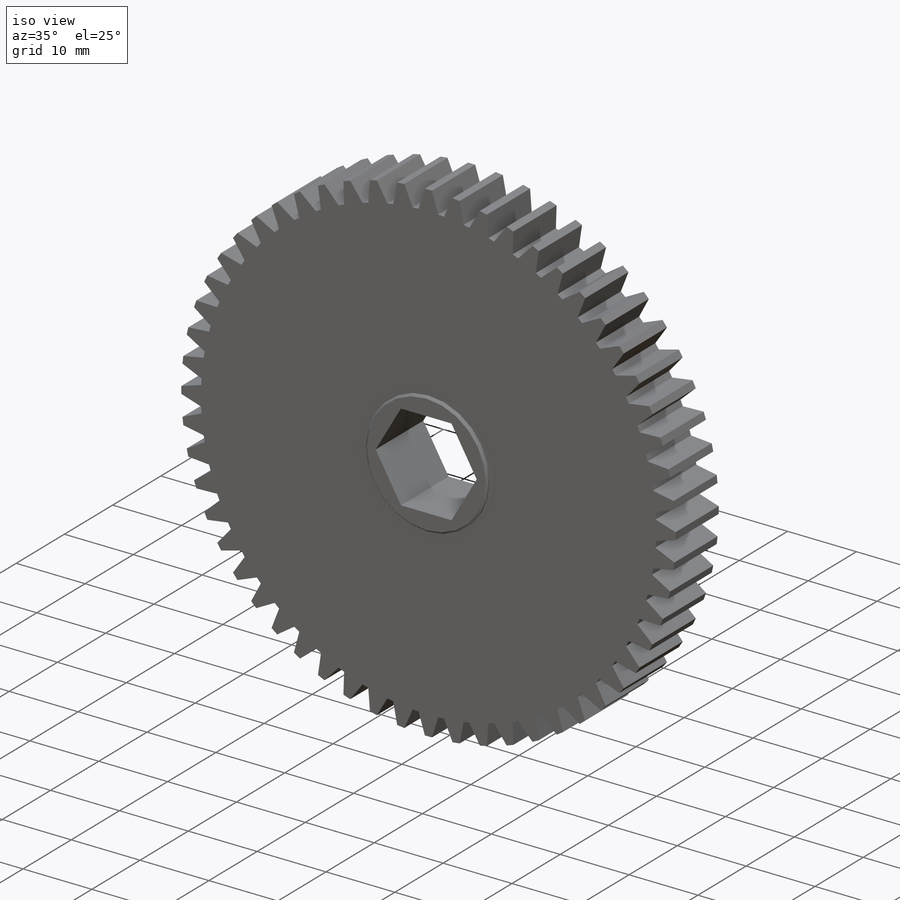
[diagram: iso view]
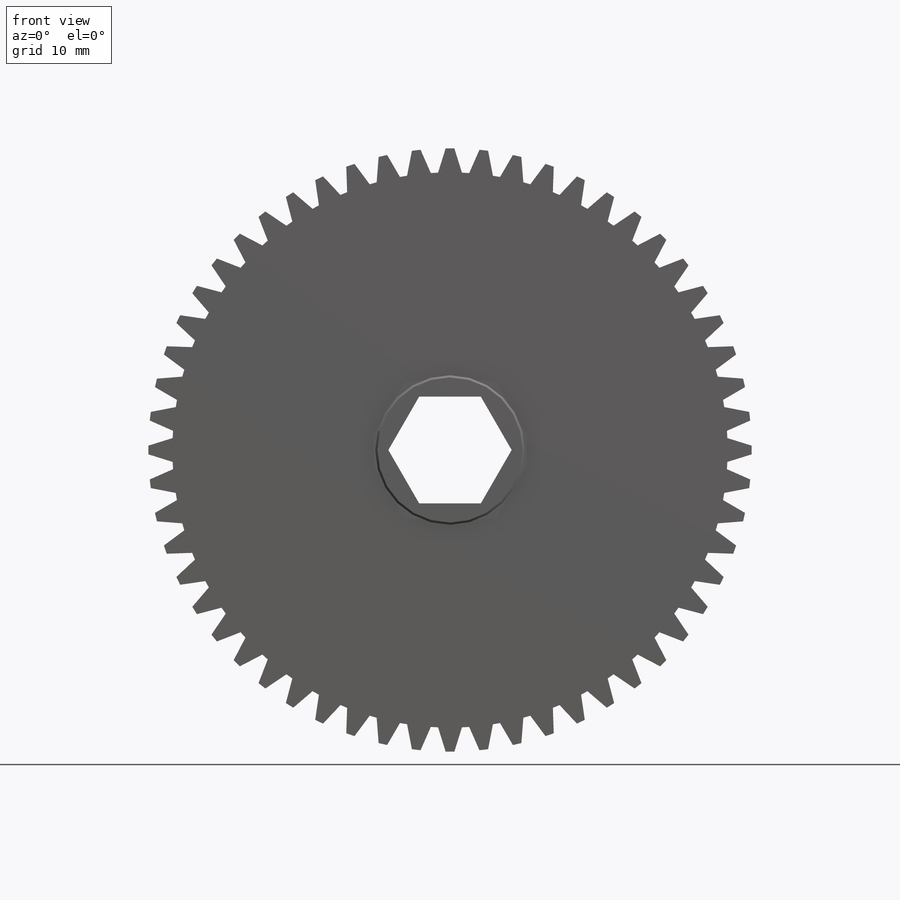
[diagram: front view]
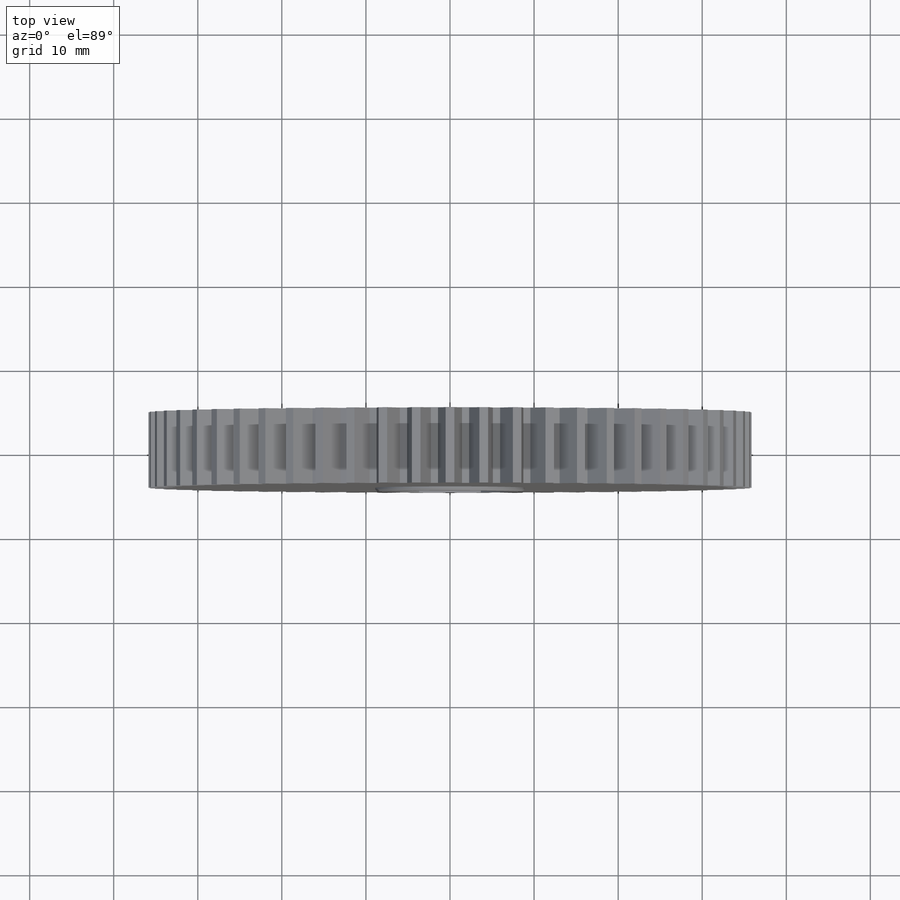
[diagram: top view]
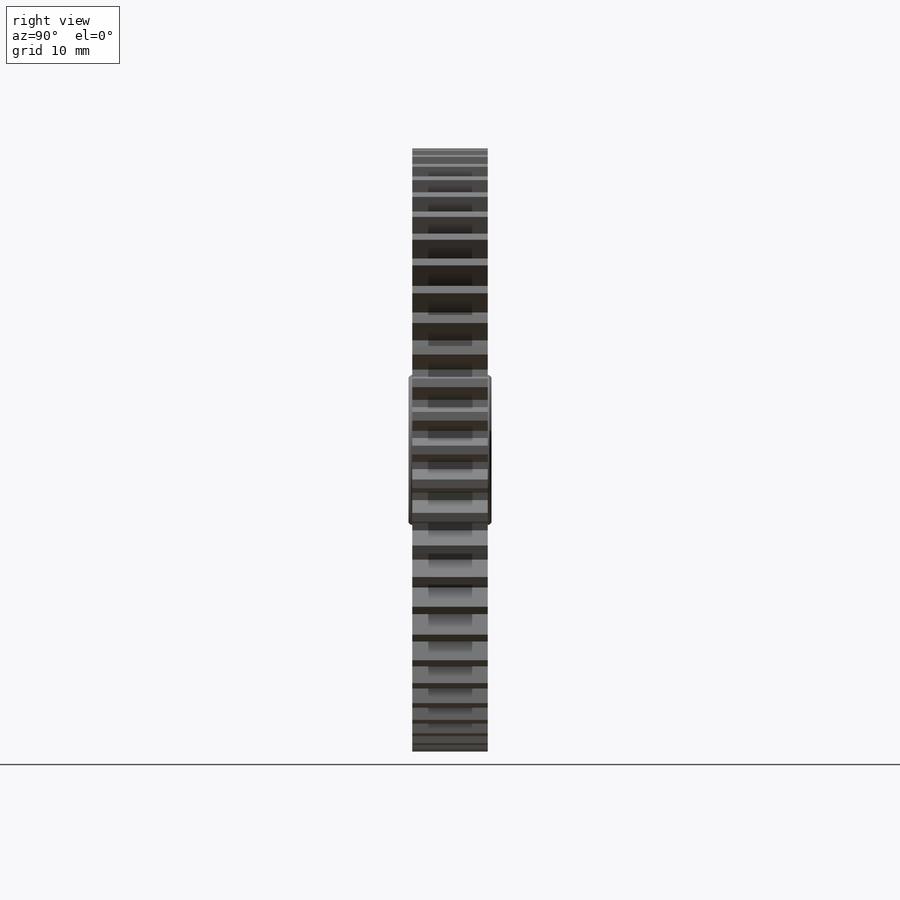
[diagram: right view]
SOLIDWORKS PART (.sldprt)
format: sldprt  version: not decoded by parser v0  size: 424,448 bytes
history: native  units: mm
features: sketch x4, chamfer x4, extrude x3, material x1, pattern_circular x1, cut_extrude x1 (+16 scaffold rows collapsed)
feature tree (30):
  scaffold x16  (default folders/planes/origin — collapsed)
  material  "AISI 4130 Steel, normalized at 870C"
  sketch  "Sketch1"  dims[D1=66.04mm]
  extrude  "Extrude1"  Depth=8.9662mm
  sketch  "Sketch2"  dims[D4=~15.230094mm D1=~1.037354mm D2=~2.841701mm D3=2.8575mm]
  extrude  "Extrude2"  [1 undecoded]
  pattern_circular  "CirPattern1"  Count=56 Angle=360deg
  sketch  "Sketch6"  dims[D1=17.78mm]
  extrude  "Extrude4"  Depth=0.4572mm
  chamfer  "Chamfer1"  Distance=0.254mm Angle=45deg
  sketch  "Sketch4"  dims[D1=12.7mm]
  cut_extrude  "Extrude3"  [1 undecoded]
  chamfer  "ModelUUID"  [1 undecoded]
  chamfer  "UUID"  [1 undecoded]
  chamfer  "ModelUUID"  [1 undecoded]
decode coverage: 8 of 13 modeling features carry decoded parameters
note: ~ marks probable driven/reference dimensions
note: 5 parameter values undecoded
summary: no parameter record found for 5 features
note: suppression state not decoded; provenance and decode notes live in map.json
